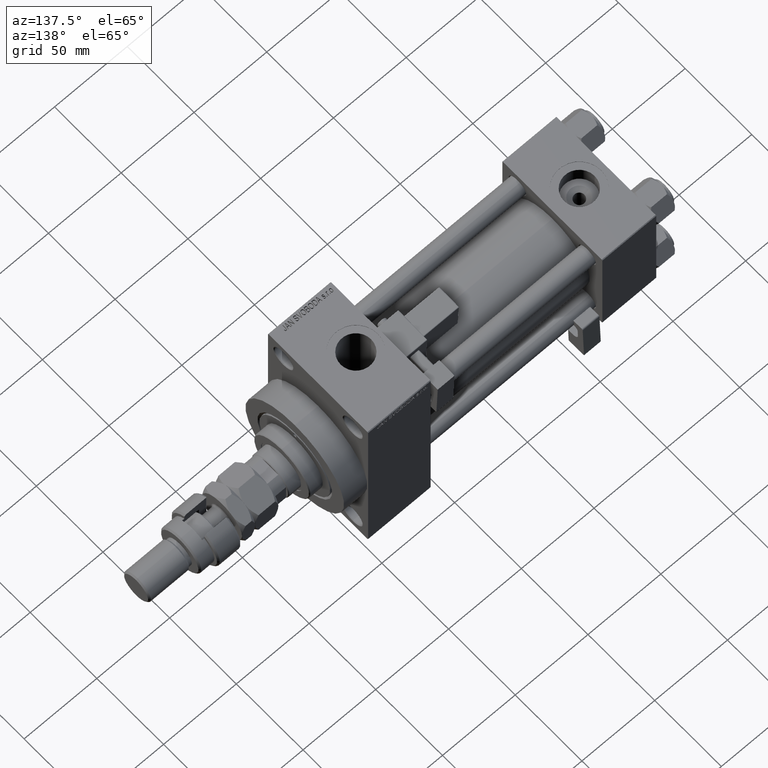
[diagram: clean part render]
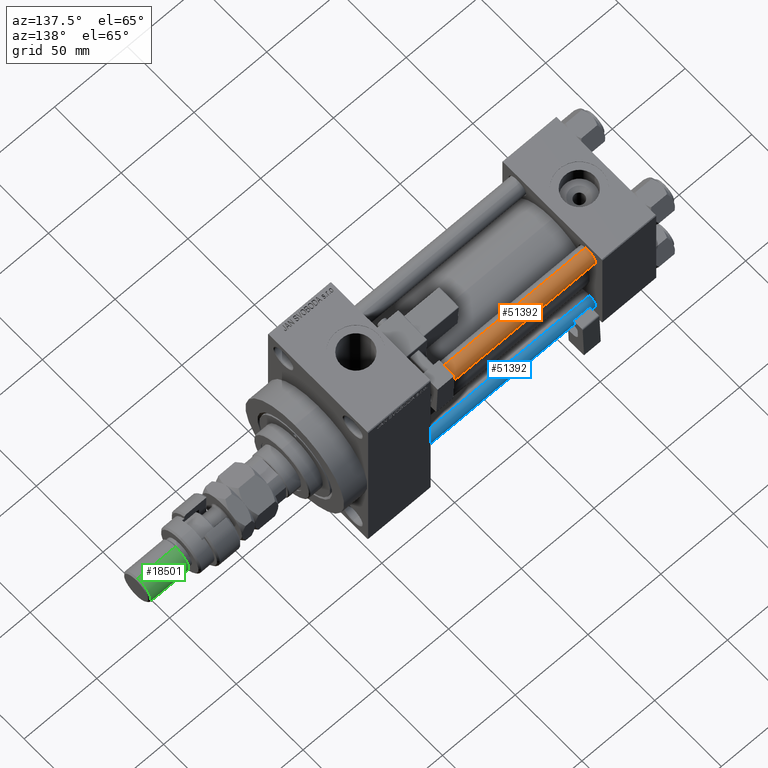
[diagram: same view with three faces highlighted in distinct colors, each labeled with its STEP entity id]
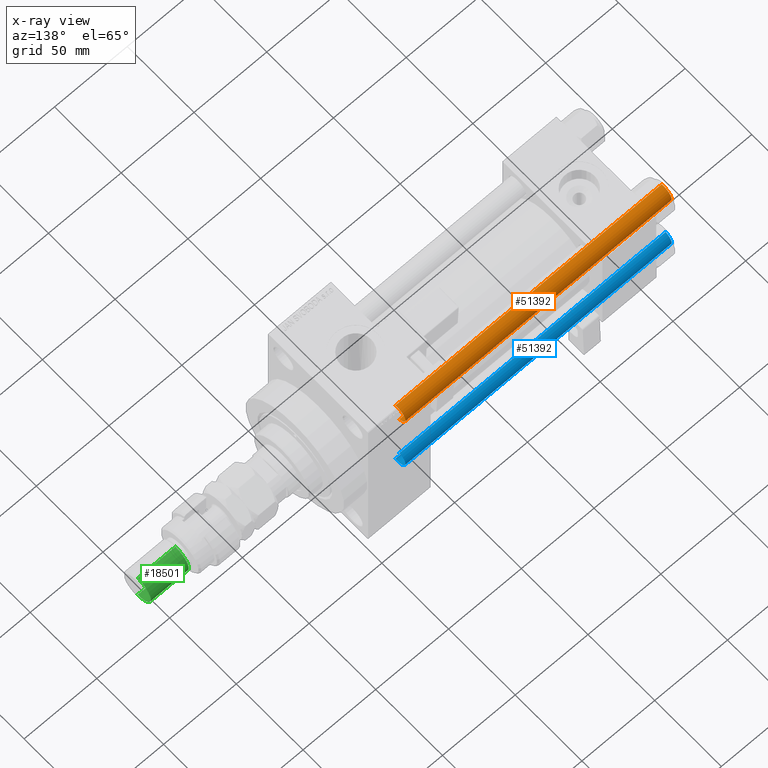
[diagram: x-ray of the same camera — body ghosted, the three highlighted faces saturated]
A machine part, auxiliary view with three faces highlighted in distinct colors.
The next image is the same camera in x-ray (body ghosted, the three faces saturated) — at least one of them is partly hidden behind the body in this view.
Their STEP definitions:

[orange] entity #51392 — the highlighted cylindrical surface (edge-blend (fillet) strip) has radius 6 mm, axis along (-1, -0, 0).
#613 = EDGE_CURVE ( 'NONE', #49217, #8284, #25022, .T. ) ;
#2932 = DIRECTION ( 'NONE',  ( -0.000000000000000000, -0.000000000000000000, -1.000000000000000000 ) ) ;
#3338 = FACE_OUTER_BOUND ( 'NONE', #37777, .T. ) ;
#3592 = DIRECTION ( 'NONE',  ( -0.000000000000000000, -0.000000000000000000, -1.000000000000000000 ) ) ;
#4025 = CARTESIAN_POINT ( 'NONE',  ( 0.000000000000000000, 0.000000000000000000, 0.5000000000000004441 ) ) ;
#4845 = CARTESIAN_POINT ( 'NONE',  ( -6.000000000000000888, 0.000000000000000000, 184.0000000000000000 ) ) ;
#4852 = VECTOR ( 'NONE', #2932, 1000.000000000000000 ) ;
#6252 = ORIENTED_EDGE ( 'NONE', *, *, #50653, .T. ) ;
#8284 = VERTEX_POINT ( 'NONE', #23040 ) ;
#9362 = CIRCLE ( 'NONE', #32244, 6.000000000000000888 ) ;
#11820 = ORIENTED_EDGE ( 'NONE', *, *, #33157, .T. ) ;
#12931 = CARTESIAN_POINT ( 'NONE',  ( 6.000000000000000888, 7.347880794884120722E-16, 183.5000000000000000 ) ) ;
#13350 = AXIS2_PLACEMENT_3D ( 'NONE', #50169, #13852, #30029 ) ;
#13852 = DIRECTION ( 'NONE',  ( 0.000000000000000000, 0.000000000000000000, -1.000000000000000000 ) ) ;
#15627 = ORIENTED_EDGE ( 'NONE', *, *, #38794, .T. ) ;
#17678 = CARTESIAN_POINT ( 'NONE',  ( -6.000000000000000888, 0.000000000000000000, 183.5000000000000000 ) ) ;
#20804 = VECTOR ( 'NONE', #37228, 1000.000000000000000 ) ;
#21006 = CIRCLE ( 'NONE', #13350, 6.000000000000000888 ) ;
#22484 = ORIENTED_EDGE ( 'NONE', *, *, #613, .F. ) ;
#23040 = CARTESIAN_POINT ( 'NONE',  ( -6.000000000000000888, 0.000000000000000000, 0.5000000000000004441 ) ) ;
#23377 = LINE ( 'NONE', #31340, #4852 ) ;
#24208 = VERTEX_POINT ( 'NONE', #28104 ) ;
#24409 = AXIS2_PLACEMENT_3D ( 'NONE', #43916, #3592, #44703 ) ;
#25022 = LINE ( 'NONE', #4845, #20804 ) ;
#28104 = CARTESIAN_POINT ( 'NONE',  ( 6.000000000000000888, 7.347880794884120722E-16, 0.5000000000000004441 ) ) ;
#30029 = DIRECTION ( 'NONE',  ( 1.000000000000000000, 0.000000000000000000, 0.000000000000000000 ) ) ;
#30369 = VERTEX_POINT ( 'NONE', #12931 ) ;
#31340 = CARTESIAN_POINT ( 'NONE',  ( 6.000000000000000888, 7.347880794884120722E-16, 184.0000000000000000 ) ) ;
#32244 = AXIS2_PLACEMENT_3D ( 'NONE', #4025, #32417, #52285 ) ;
#32417 = DIRECTION ( 'NONE',  ( -0.000000000000000000, -0.000000000000000000, 1.000000000000000000 ) ) ;
#33157 = EDGE_CURVE ( 'NONE', #30369, #24208, #23377, .T. ) ;
#35455 = CYLINDRICAL_SURFACE ( 'NONE', #24409, 6.000000000000000888 ) ;
#37228 = DIRECTION ( 'NONE',  ( -0.000000000000000000, -0.000000000000000000, -1.000000000000000000 ) ) ;
#37777 = EDGE_LOOP ( 'NONE', ( #6252, #11820, #15627, #22484 ) ) ;
#38794 = EDGE_CURVE ( 'NONE', #24208, #8284, #9362, .T. ) ;
#43916 = CARTESIAN_POINT ( 'NONE',  ( 0.000000000000000000, 0.000000000000000000, 184.0000000000000000 ) ) ;
#44703 = DIRECTION ( 'NONE',  ( -1.000000000000000000, 0.000000000000000000, 0.000000000000000000 ) ) ;
#49217 = VERTEX_POINT ( 'NONE', #17678 ) ;
#50169 = CARTESIAN_POINT ( 'NONE',  ( 0.000000000000000000, 0.000000000000000000, 183.5000000000000000 ) ) ;
#50653 = EDGE_CURVE ( 'NONE', #49217, #30369, #21006, .T. ) ;
#51392 = ADVANCED_FACE ( 'NONE', ( #3338 ), #35455, .T. ) ;
#52285 = DIRECTION ( 'NONE',  ( 1.000000000000000000, 0.000000000000000000, 0.000000000000000000 ) ) ;

[blue] entity #51392 — the highlighted cylindrical surface (edge-blend (fillet) strip) has radius 6 mm, axis along (1, -0, 0).
#613 = EDGE_CURVE ( 'NONE', #49217, #8284, #25022, .T. ) ;
#2932 = DIRECTION ( 'NONE',  ( -0.000000000000000000, -0.000000000000000000, -1.000000000000000000 ) ) ;
#3338 = FACE_OUTER_BOUND ( 'NONE', #37777, .T. ) ;
#3592 = DIRECTION ( 'NONE',  ( -0.000000000000000000, -0.000000000000000000, -1.000000000000000000 ) ) ;
#4025 = CARTESIAN_POINT ( 'NONE',  ( 0.000000000000000000, 0.000000000000000000, 0.5000000000000004441 ) ) ;
#4845 = CARTESIAN_POINT ( 'NONE',  ( -6.000000000000000888, 0.000000000000000000, 184.0000000000000000 ) ) ;
#4852 = VECTOR ( 'NONE', #2932, 1000.000000000000000 ) ;
#6252 = ORIENTED_EDGE ( 'NONE', *, *, #50653, .T. ) ;
#8284 = VERTEX_POINT ( 'NONE', #23040 ) ;
#9362 = CIRCLE ( 'NONE', #32244, 6.000000000000000888 ) ;
#11820 = ORIENTED_EDGE ( 'NONE', *, *, #33157, .T. ) ;
#12931 = CARTESIAN_POINT ( 'NONE',  ( 6.000000000000000888, 7.347880794884120722E-16, 183.5000000000000000 ) ) ;
#13350 = AXIS2_PLACEMENT_3D ( 'NONE', #50169, #13852, #30029 ) ;
#13852 = DIRECTION ( 'NONE',  ( 0.000000000000000000, 0.000000000000000000, -1.000000000000000000 ) ) ;
#15627 = ORIENTED_EDGE ( 'NONE', *, *, #38794, .T. ) ;
#17678 = CARTESIAN_POINT ( 'NONE',  ( -6.000000000000000888, 0.000000000000000000, 183.5000000000000000 ) ) ;
#20804 = VECTOR ( 'NONE', #37228, 1000.000000000000000 ) ;
#21006 = CIRCLE ( 'NONE', #13350, 6.000000000000000888 ) ;
#22484 = ORIENTED_EDGE ( 'NONE', *, *, #613, .F. ) ;
#23040 = CARTESIAN_POINT ( 'NONE',  ( -6.000000000000000888, 0.000000000000000000, 0.5000000000000004441 ) ) ;
#23377 = LINE ( 'NONE', #31340, #4852 ) ;
#24208 = VERTEX_POINT ( 'NONE', #28104 ) ;
#24409 = AXIS2_PLACEMENT_3D ( 'NONE', #43916, #3592, #44703 ) ;
#25022 = LINE ( 'NONE', #4845, #20804 ) ;
#28104 = CARTESIAN_POINT ( 'NONE',  ( 6.000000000000000888, 7.347880794884120722E-16, 0.5000000000000004441 ) ) ;
#30029 = DIRECTION ( 'NONE',  ( 1.000000000000000000, 0.000000000000000000, 0.000000000000000000 ) ) ;
#30369 = VERTEX_POINT ( 'NONE', #12931 ) ;
#31340 = CARTESIAN_POINT ( 'NONE',  ( 6.000000000000000888, 7.347880794884120722E-16, 184.0000000000000000 ) ) ;
#32244 = AXIS2_PLACEMENT_3D ( 'NONE', #4025, #32417, #52285 ) ;
#32417 = DIRECTION ( 'NONE',  ( -0.000000000000000000, -0.000000000000000000, 1.000000000000000000 ) ) ;
#33157 = EDGE_CURVE ( 'NONE', #30369, #24208, #23377, .T. ) ;
#35455 = CYLINDRICAL_SURFACE ( 'NONE', #24409, 6.000000000000000888 ) ;
#37228 = DIRECTION ( 'NONE',  ( -0.000000000000000000, -0.000000000000000000, -1.000000000000000000 ) ) ;
#37777 = EDGE_LOOP ( 'NONE', ( #6252, #11820, #15627, #22484 ) ) ;
#38794 = EDGE_CURVE ( 'NONE', #24208, #8284, #9362, .T. ) ;
#43916 = CARTESIAN_POINT ( 'NONE',  ( 0.000000000000000000, 0.000000000000000000, 184.0000000000000000 ) ) ;
#44703 = DIRECTION ( 'NONE',  ( -1.000000000000000000, 0.000000000000000000, 0.000000000000000000 ) ) ;
#49217 = VERTEX_POINT ( 'NONE', #17678 ) ;
#50169 = CARTESIAN_POINT ( 'NONE',  ( 0.000000000000000000, 0.000000000000000000, 183.5000000000000000 ) ) ;
#50653 = EDGE_CURVE ( 'NONE', #49217, #30369, #21006, .T. ) ;
#51392 = ADVANCED_FACE ( 'NONE', ( #3338 ), #35455, .T. ) ;
#52285 = DIRECTION ( 'NONE',  ( 1.000000000000000000, 0.000000000000000000, 0.000000000000000000 ) ) ;

[green] entity #18501 — the highlighted cylindrical surface (edge-blend (fillet) strip) has radius 10 mm, axis along (-1, -0, 0).
#362 = CARTESIAN_POINT ( 'NONE',  ( -10.00000000000000000, 0.000000000000000000, 56.00000000000000711 ) ) ;
#2273 = CARTESIAN_POINT ( 'NONE',  ( 0.000000000000000000, 0.000000000000000000, 56.00000000000000711 ) ) ;
#2786 = DIRECTION ( 'NONE',  ( -1.000000000000000000, 0.000000000000000000, 0.000000000000000000 ) ) ;
#3235 = CARTESIAN_POINT ( 'NONE',  ( 0.000000000000000000, 0.000000000000000000, 29.00000000000000711 ) ) ;
#3250 = DIRECTION ( 'NONE',  ( -0.000000000000000000, -0.000000000000000000, -1.000000000000000000 ) ) ;
#4038 = FACE_OUTER_BOUND ( 'NONE', #49141, .T. ) ;
#4176 = ORIENTED_EDGE ( 'NONE', *, *, #11326, .F. ) ;
#5652 = VERTEX_POINT ( 'NONE', #45944 ) ;
#10411 = EDGE_CURVE ( 'NONE', #14824, #37579, #30607, .T. ) ;
#10654 = CIRCLE ( 'NONE', #40298, 10.00000000000000000 ) ;
#10755 = DIRECTION ( 'NONE',  ( -0.000000000000000000, -0.000000000000000000, -1.000000000000000000 ) ) ;
#11326 = EDGE_CURVE ( 'NONE', #44102, #5652, #46452, .T. ) ;
#12025 = DIRECTION ( 'NONE',  ( 1.000000000000000000, 0.000000000000000000, 0.000000000000000000 ) ) ;
#12138 = ORIENTED_EDGE ( 'NONE', *, *, #46555, .T. ) ;
#13431 = AXIS2_PLACEMENT_3D ( 'NONE', #40404, #48352, #12025 ) ;
#13452 = VECTOR ( 'NONE', #3250, 1000.000000000000000 ) ;
#14824 = VERTEX_POINT ( 'NONE', #25608 ) ;
#15702 = DIRECTION ( 'NONE',  ( -0.000000000000000000, -0.000000000000000000, 1.000000000000000000 ) ) ;
#15994 = ORIENTED_EDGE ( 'NONE', *, *, #34964, .T. ) ;
#18501 = ADVANCED_FACE ( 'NONE', ( #4038 ), #51311, .T. ) ;
#23690 = VECTOR ( 'NONE', #50419, 1000.000000000000000 ) ;
#25608 = CARTESIAN_POINT ( 'NONE',  ( 10.00000000000000000, 1.224646799147353256E-15, 54.99999999999998579 ) ) ;
#26882 = CARTESIAN_POINT ( 'NONE',  ( 10.00000000000000000, 1.224646799147353256E-15, 56.00000000000000711 ) ) ;
#28827 = CARTESIAN_POINT ( 'NONE',  ( 10.00000000000000000, 1.224646799147353256E-15, 29.00000000000000711 ) ) ;
#30607 = LINE ( 'NONE', #26882, #13452 ) ;
#34964 = EDGE_CURVE ( 'NONE', #44102, #14824, #46475, .T. ) ;
#36764 = CARTESIAN_POINT ( 'NONE',  ( -10.00000000000000000, 0.000000000000000000, 54.99999999999998579 ) ) ;
#37579 = VERTEX_POINT ( 'NONE', #28827 ) ;
#40035 = AXIS2_PLACEMENT_3D ( 'NONE', #2273, #10755, #2786 ) ;
#40298 = AXIS2_PLACEMENT_3D ( 'NONE', #3235, #15702, #51766 ) ;
#40404 = CARTESIAN_POINT ( 'NONE',  ( 0.000000000000000000, 0.000000000000000000, 54.99999999999998579 ) ) ;
#44102 = VERTEX_POINT ( 'NONE', #36764 ) ;
#45944 = CARTESIAN_POINT ( 'NONE',  ( -10.00000000000000000, 0.000000000000000000, 29.00000000000000711 ) ) ;
#46452 = LINE ( 'NONE', #362, #23690 ) ;
#46475 = CIRCLE ( 'NONE', #13431, 10.00000000000000000 ) ;
#46555 = EDGE_CURVE ( 'NONE', #37579, #5652, #10654, .T. ) ;
#47111 = ORIENTED_EDGE ( 'NONE', *, *, #10411, .T. ) ;
#48352 = DIRECTION ( 'NONE',  ( 0.000000000000000000, 0.000000000000000000, -1.000000000000000000 ) ) ;
#49141 = EDGE_LOOP ( 'NONE', ( #15994, #47111, #12138, #4176 ) ) ;
#50419 = DIRECTION ( 'NONE',  ( -0.000000000000000000, -0.000000000000000000, -1.000000000000000000 ) ) ;
#51311 = CYLINDRICAL_SURFACE ( 'NONE', #40035, 10.00000000000000000 ) ;
#51766 = DIRECTION ( 'NONE',  ( 1.000000000000000000, 0.000000000000000000, 0.000000000000000000 ) ) ;